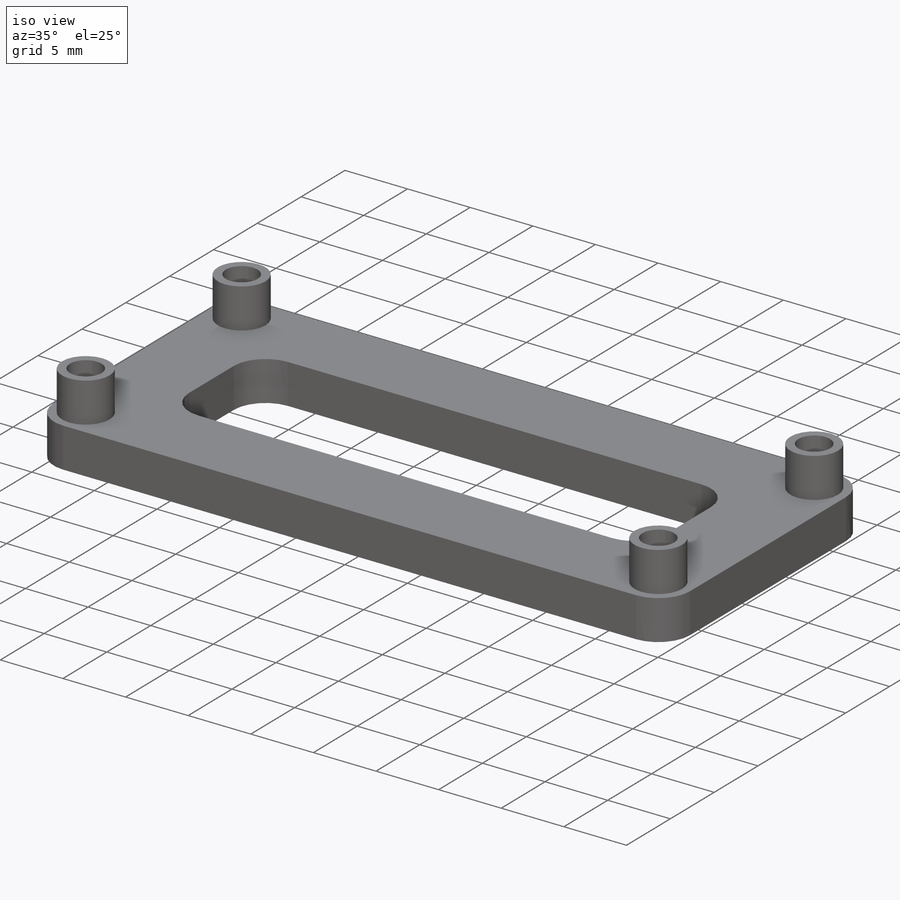
[diagram: iso view]
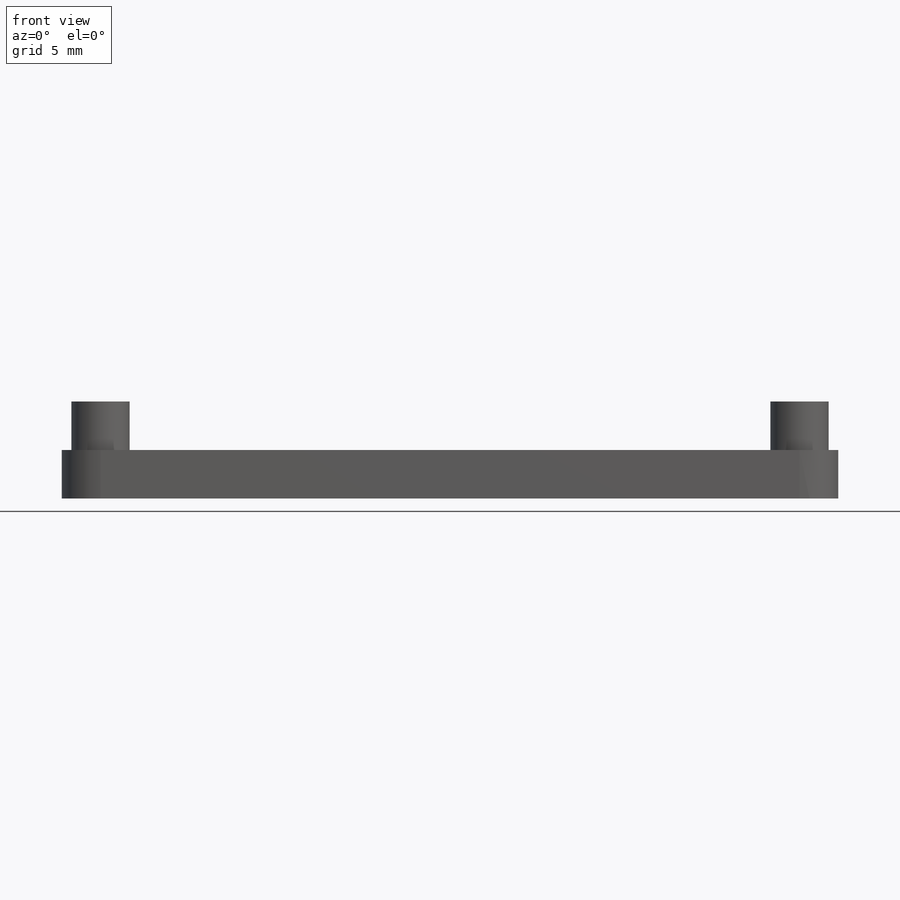
[diagram: front view]
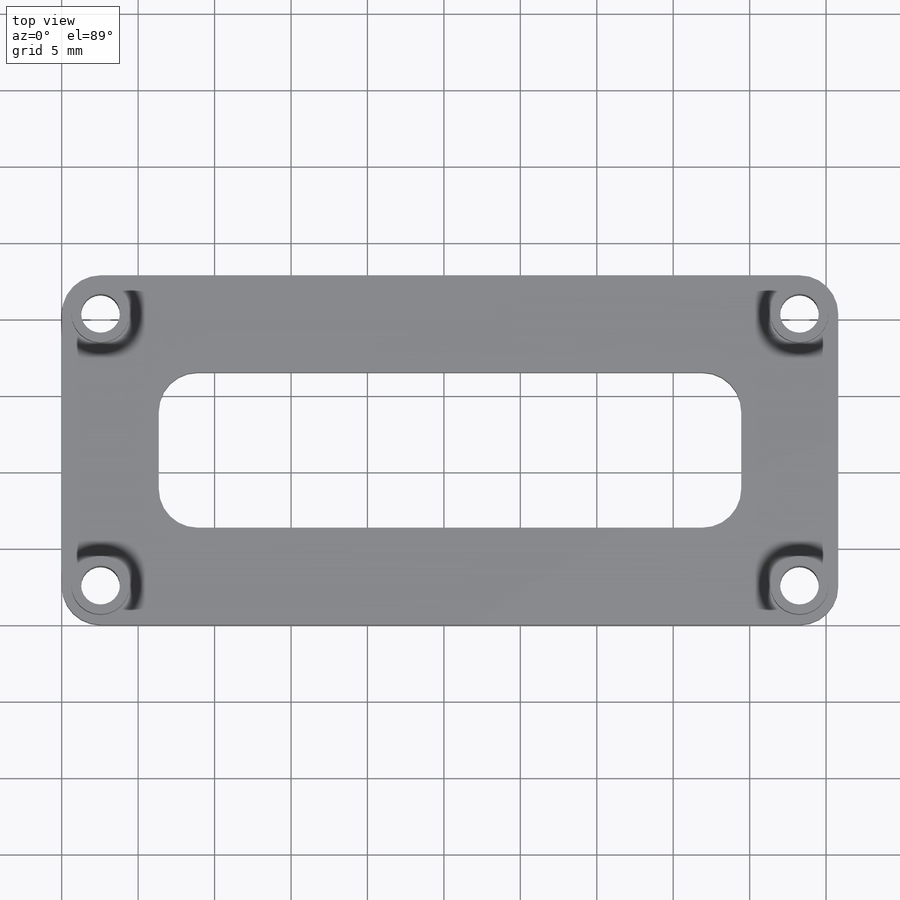
[diagram: top view]
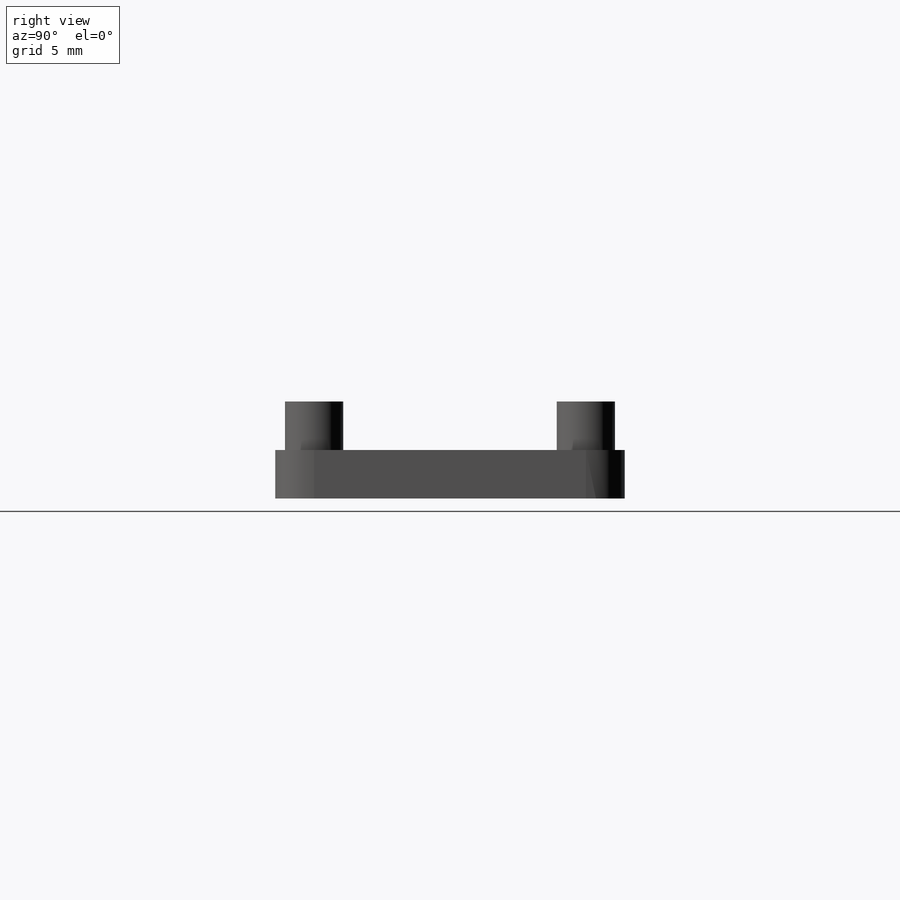
[diagram: right view]
SOLIDWORKS PART (.sldprt)
format: sldprt  version: not decoded by parser v0  size: 232,960 bytes
history: native  units: mm
features: sketch x2, extrude x2, material x1, fillet x1 (+12 scaffold rows collapsed)
feature tree (18):
  scaffold x12  (default folders/planes/origin — collapsed)
  material  "Material <not specified>"
  sketch  "Sketch1"  dims[D3=2.54mm D4=2.54mm D5=2.54mm D6=2.54mm D1=22.86mm D2=50.8mm D7=45.72mm D8=17.78mm D9=2.54mm D10=2.54mm D11=6.35mm D12=38.1mm D13=6.35mm D14=10.16mm]
  extrude  "Boss-Extrude1"  Depth=3.175mm
  sketch  "Sketch2"  dims[D1=3.81mm D2=2.54mm]
  extrude  "Boss-Extrude2"  Depth=3.175mm
  fillet  "Fillet1"  Radius=2.54mm
decode coverage: 5 of 5 modeling features carry decoded parameters
note: suppression state not decoded; provenance and decode notes live in map.json
